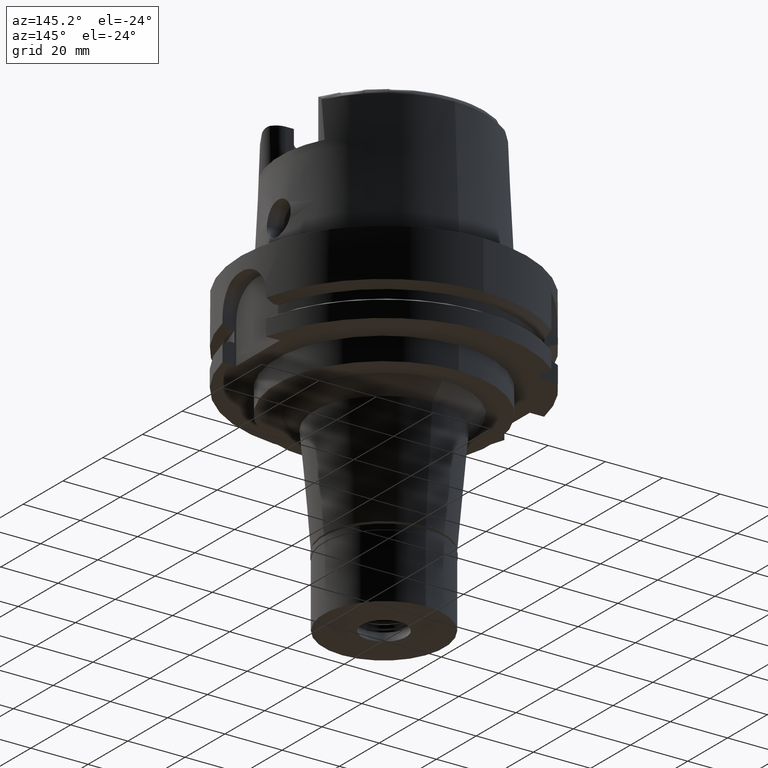
[diagram: clean part render]
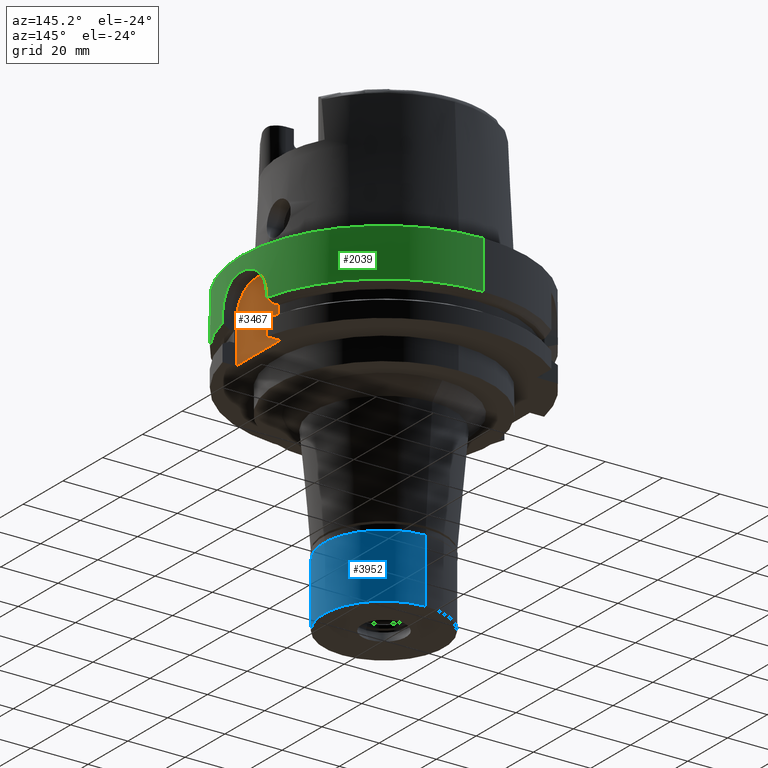
[diagram: same view with three faces highlighted in distinct colors, each labeled with its STEP entity id]
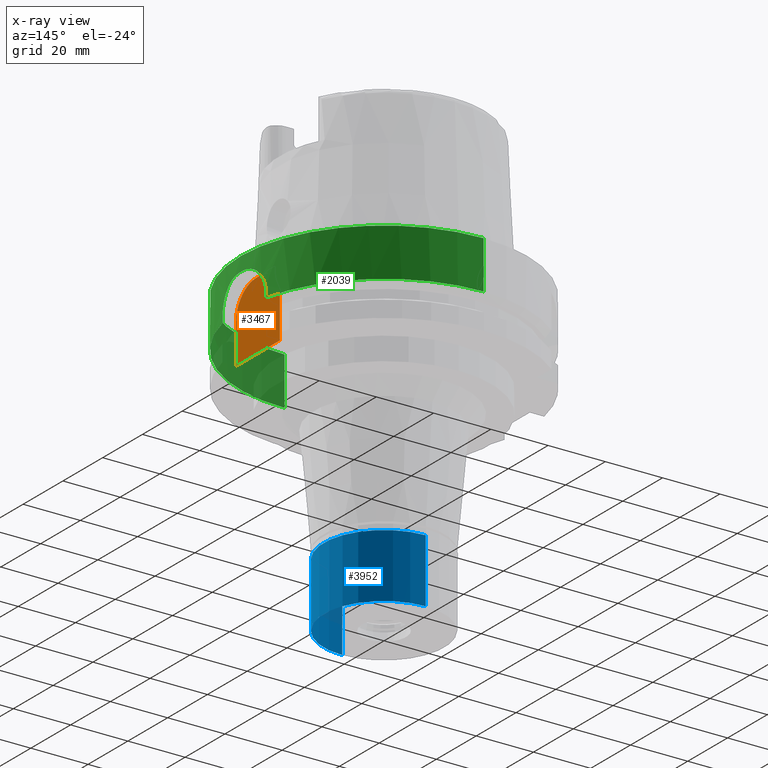
[diagram: x-ray of the same camera — body ghosted, the three highlighted faces saturated]
A machine part, auxiliary view with three faces highlighted in distinct colors.
The next image is the same camera in x-ray (body ghosted, the three faces saturated) — at least one of them is partly hidden behind the body in this view.
Their STEP definitions:

[orange] entity #3467 — the highlighted planar face has unit normal (1, 0, 0).
#113 = CARTESIAN_POINT ( 'NONE',  ( 44.00000000000000000, -11.00000000000000000, -29.00000000000000000 ) ) ;
#135 = AXIS2_PLACEMENT_3D ( 'NONE', #2072, #2834, #5058 ) ;
#257 = PLANE ( 'NONE',  #135 ) ;
#759 = CARTESIAN_POINT ( 'NONE',  ( 44.00000000000000000, -1.000000000000000000, -15.00000000000000000 ) ) ;
#1104 = VECTOR ( 'NONE', #4105, 1000.000000000000000 ) ;
#1113 = FACE_OUTER_BOUND ( 'NONE', #3155, .T. ) ;
#1218 = EDGE_CURVE ( 'NONE', #3682, #2916, #5426, .T. ) ;
#1241 = LINE ( 'NONE', #3059, #5263 ) ;
#1399 = AXIS2_PLACEMENT_3D ( 'NONE', #5265, #3063, #1818 ) ;
#1529 = EDGE_CURVE ( 'NONE', #2916, #1925, #1241, .T. ) ;
#1580 = LINE ( 'NONE', #2419, #2951 ) ;
#1730 = ORIENTED_EDGE ( 'NONE', *, *, #1218, .F. ) ;
#1818 = DIRECTION ( 'NONE',  ( 0.0000000000000000000, 2.086004979862110531E-14, 1.000000000000000000 ) ) ;
#1819 = ORIENTED_EDGE ( 'NONE', *, *, #1529, .F. ) ;
#1823 = DIRECTION ( 'NONE',  ( 0.0000000000000000000, 0.0000000000000000000, 1.000000000000000000 ) ) ;
#1925 = VERTEX_POINT ( 'NONE', #5032 ) ;
#1935 = VERTEX_POINT ( 'NONE', #2864 ) ;
#2072 = CARTESIAN_POINT ( 'NONE',  ( 44.00000000000000000, 0.0000000000000000000, 0.0000000000000000000 ) ) ;
#2383 = CARTESIAN_POINT ( 'NONE',  ( 44.00000000000000000, 11.00000000000000000, -29.00000000000000000 ) ) ;
#2419 = CARTESIAN_POINT ( 'NONE',  ( 44.00000000000000000, 11.00000000000000000, -15.00000000000000000 ) ) ;
#2474 = DIRECTION ( 'NONE',  ( 0.0000000000000000000, -1.000000000000000000, 0.0000000000000000000 ) ) ;
#2494 = VERTEX_POINT ( 'NONE', #3040 ) ;
#2543 = EDGE_CURVE ( 'NONE', #1935, #3682, #5269, .T. ) ;
#2703 = AXIS2_PLACEMENT_3D ( 'NONE', #759, #4719, #2474 ) ;
#2705 = EDGE_CURVE ( 'NONE', #4057, #2494, #1580, .T. ) ;
#2739 = ORIENTED_EDGE ( 'NONE', *, *, #2543, .F. ) ;
#2834 = DIRECTION ( 'NONE',  ( 1.000000000000000000, 0.0000000000000000000, 0.0000000000000000000 ) ) ;
#2864 = CARTESIAN_POINT ( 'NONE',  ( 44.00000000000000000, -11.00000000000000000, -29.00000000000000000 ) ) ;
#2916 = VERTEX_POINT ( 'NONE', #3949 ) ;
#2951 = VECTOR ( 'NONE', #5547, 1000.000000000000000 ) ;
#3040 = CARTESIAN_POINT ( 'NONE',  ( 44.00000000000000000, 11.00000000000000000, -29.00000000000000000 ) ) ;
#3059 = CARTESIAN_POINT ( 'NONE',  ( 44.00000000000000000, -1.000000000000000000, -5.000000000000000000 ) ) ;
#3063 = DIRECTION ( 'NONE',  ( -1.000000000000000000, 0.0000000000000000000, 0.0000000000000000000 ) ) ;
#3155 = EDGE_LOOP ( 'NONE', ( #5295, #4644, #1819, #1730, #2739, #5103 ) ) ;
#3276 = CIRCLE ( 'NONE', #1399, 10.00000000000000000 ) ;
#3394 = CARTESIAN_POINT ( 'NONE',  ( 44.00000000000000000, 11.00000000000000000, -15.00000000000000000 ) ) ;
#3467 = ADVANCED_FACE ( 'NONE', ( #1113 ), #257, .T. ) ;
#3568 = CARTESIAN_POINT ( 'NONE',  ( 44.00000000000000000, -11.00000000000000000, -15.00000000000000000 ) ) ;
#3581 = EDGE_CURVE ( 'NONE', #2494, #1935, #4532, .T. ) ;
#3682 = VERTEX_POINT ( 'NONE', #3568 ) ;
#3949 = CARTESIAN_POINT ( 'NONE',  ( 44.00000000000000000, -1.000000000000000000, -5.000000000000000000 ) ) ;
#4057 = VERTEX_POINT ( 'NONE', #3394 ) ;
#4105 = DIRECTION ( 'NONE',  ( 0.0000000000000000000, -1.000000000000000000, 0.0000000000000000000 ) ) ;
#4344 = EDGE_CURVE ( 'NONE', #1925, #4057, #3276, .T. ) ;
#4532 = LINE ( 'NONE', #2383, #1104 ) ;
#4644 = ORIENTED_EDGE ( 'NONE', *, *, #4344, .F. ) ;
#4719 = DIRECTION ( 'NONE',  ( -1.000000000000000000, 0.0000000000000000000, 0.0000000000000000000 ) ) ;
#5032 = CARTESIAN_POINT ( 'NONE',  ( 44.00000000000000000, 1.000000000000000000, -5.000000000000000000 ) ) ;
#5058 = DIRECTION ( 'NONE',  ( 0.0000000000000000000, 1.000000000000000000, 0.0000000000000000000 ) ) ;
#5103 = ORIENTED_EDGE ( 'NONE', *, *, #3581, .F. ) ;
#5263 = VECTOR ( 'NONE', #5586, 1000.000000000000000 ) ;
#5265 = CARTESIAN_POINT ( 'NONE',  ( 44.00000000000000000, 1.000000000000000000, -15.00000000000000000 ) ) ;
#5269 = LINE ( 'NONE', #113, #5579 ) ;
#5295 = ORIENTED_EDGE ( 'NONE', *, *, #2705, .F. ) ;
#5426 = CIRCLE ( 'NONE', #2703, 9.999999999999998224 ) ;
#5547 = DIRECTION ( 'NONE',  ( 0.0000000000000000000, 0.0000000000000000000, -1.000000000000000000 ) ) ;
#5579 = VECTOR ( 'NONE', #1823, 1000.000000000000000 ) ;
#5586 = DIRECTION ( 'NONE',  ( 0.0000000000000000000, 1.000000000000000000, 0.0000000000000000000 ) ) ;

[blue] entity #3952 — the highlighted cylindrical surface (partial cylindrical patch) has radius 21 mm, axis along (0, 0, -1).
#128 = CARTESIAN_POINT ( 'NONE',  ( 0.0000000000000000000, 0.0000000000000000000, -24.29999999999999716 ) ) ;
#190 = VERTEX_POINT ( 'NONE', #3403 ) ;
#238 = EDGE_LOOP ( 'NONE', ( #4114, #386, #4657, #3513 ) ) ;
#386 = ORIENTED_EDGE ( 'NONE', *, *, #830, .T. ) ;
#445 = LINE ( 'NONE', #1731, #5034 ) ;
#559 = VERTEX_POINT ( 'NONE', #3365 ) ;
#777 = CARTESIAN_POINT ( 'NONE',  ( 0.0000000000000000000, 0.0000000000000000000, 0.0000000000000000000 ) ) ;
#782 = CARTESIAN_POINT ( 'NONE',  ( 0.0000000000000000000, 21.00000000000000000, -24.29999999999999716 ) ) ;
#808 = VERTEX_POINT ( 'NONE', #3144 ) ;
#830 = EDGE_CURVE ( 'NONE', #808, #559, #4878, .T. ) ;
#890 = CYLINDRICAL_SURFACE ( 'NONE', #1297, 21.00000000000000000 ) ;
#1003 = CARTESIAN_POINT ( 'NONE',  ( 0.0000000000000000000, -21.00000000000000000, -2.000000000000000000 ) ) ;
#1297 = AXIS2_PLACEMENT_3D ( 'NONE', #777, #2603, #4276 ) ;
#1314 = DIRECTION ( 'NONE',  ( 0.0000000000000000000, 0.0000000000000000000, -1.000000000000000000 ) ) ;
#1342 = FACE_OUTER_BOUND ( 'NONE', #238, .T. ) ;
#1731 = CARTESIAN_POINT ( 'NONE',  ( 0.0000000000000000000, 21.00000000000000000, -2.000000000000000000 ) ) ;
#1836 = DIRECTION ( 'NONE',  ( 0.0000000000000000000, -1.000000000000000000, 0.0000000000000000000 ) ) ;
#1842 = DIRECTION ( 'NONE',  ( 0.0000000000000000000, 0.0000000000000000000, -1.000000000000000000 ) ) ;
#2250 = VECTOR ( 'NONE', #2719, 1000.000000000000000 ) ;
#2476 = VERTEX_POINT ( 'NONE', #782 ) ;
#2603 = DIRECTION ( 'NONE',  ( 0.0000000000000000000, 0.0000000000000000000, -1.000000000000000000 ) ) ;
#2639 = EDGE_CURVE ( 'NONE', #190, #2476, #445, .T. ) ;
#2655 = DIRECTION ( 'NONE',  ( 0.0000000000000000000, 0.0000000000000000000, 1.000000000000000000 ) ) ;
#2719 = DIRECTION ( 'NONE',  ( 0.0000000000000000000, 0.0000000000000000000, -1.000000000000000000 ) ) ;
#3144 = CARTESIAN_POINT ( 'NONE',  ( 0.0000000000000000000, -21.00000000000000000, -2.000000000000000000 ) ) ;
#3166 = CARTESIAN_POINT ( 'NONE',  ( 0.0000000000000000000, 0.0000000000000000000, -2.000000000000000000 ) ) ;
#3365 = CARTESIAN_POINT ( 'NONE',  ( 0.0000000000000000000, -21.00000000000000000, -24.29999999999999716 ) ) ;
#3372 = CIRCLE ( 'NONE', #3555, 21.00000000000000000 ) ;
#3403 = CARTESIAN_POINT ( 'NONE',  ( 0.0000000000000000000, 21.00000000000000000, -2.000000000000000000 ) ) ;
#3513 = ORIENTED_EDGE ( 'NONE', *, *, #2639, .F. ) ;
#3555 = AXIS2_PLACEMENT_3D ( 'NONE', #3166, #1842, #4393 ) ;
#3952 = ADVANCED_FACE ( 'NONE', ( #1342 ), #890, .T. ) ;
#4114 = ORIENTED_EDGE ( 'NONE', *, *, #4231, .T. ) ;
#4169 = AXIS2_PLACEMENT_3D ( 'NONE', #128, #2655, #1836 ) ;
#4231 = EDGE_CURVE ( 'NONE', #190, #808, #3372, .T. ) ;
#4276 = DIRECTION ( 'NONE',  ( 0.0000000000000000000, -1.000000000000000000, 0.0000000000000000000 ) ) ;
#4393 = DIRECTION ( 'NONE',  ( 0.0000000000000000000, 1.000000000000000000, 0.0000000000000000000 ) ) ;
#4657 = ORIENTED_EDGE ( 'NONE', *, *, #4944, .T. ) ;
#4878 = LINE ( 'NONE', #1003, #2250 ) ;
#4944 = EDGE_CURVE ( 'NONE', #559, #2476, #5198, .T. ) ;
#5034 = VECTOR ( 'NONE', #1314, 1000.000000000000000 ) ;
#5198 = CIRCLE ( 'NONE', #4169, 21.00000000000000000 ) ;

[green] entity #2039 — the highlighted cylindrical surface (partial cylindrical patch) has radius 50 mm, axis along (0, 0, 1).
#106 = B_SPLINE_CURVE_WITH_KNOTS ( 'NONE', 3,
 ( #3323, #3294, #3350, #3747, #5417, #1523, #2446, #318, #1175, #5493, #5098, #1206, #5071, #4517, #3244, #348, #652, #2364, #4171, #5010, #2031, #240, #5039, #4090, #4145, #2900, #1124, #1609, #2872, #4986, #1095, #1150, #4610, #4636, #765, #737, #1948, #1549, #2815, #2479, #4206, #2056, #4548, #679, #2392, #3668, #3776, #3690, #5517, #5440, #1634, #3721, #287, #4117, #263, #3266, #1999, #1974 ),
 .UNSPECIFIED., .F., .F.,
 ( 4, 2, 2, 2, 1, 1, 1, 2, 2, 2, 2, 1, 1, 1, 1, 1, 2, 2, 2, 2, 2, 1, 1, 2, 2, 2, 2, 2, 1, 1, 1, 1, 2, 2, 2, 4 ),
 ( 0.0000000000000000000, 0.1249999999999804601, 0.1874999999999707179, 0.2187499999999658884, 0.2343749999999635292, 0.2421874999999623079, 0.2460937499999617528, 0.2480468749999615308, 0.2499999999999613087, 0.3124999999999529821, 0.3437499999999488742, 0.3593749999999467648, 0.3671874999999456546, 0.3710937499999451550, 0.3730468749999448774, 0.3740234374999446554, 0.3745117187499444888, 0.3749999999999443778, 0.4374999999999440448, 0.4687499999999438782, 0.4843749999999436562, 0.4921874999999434896, 0.4960937499999434896, 0.4980468749999436007, 0.4999999999999437117, 0.6249999999999535927, 0.6874999999999586997, 0.7187499999999614753, 0.7343749999999630296, 0.7421874999999641398, 0.7460937499999645839, 0.7480468749999648059, 0.7490234374999648059, 0.7499999999999649170, 0.8749999999999824585, 1.000000000000000000 ),
 .UNSPECIFIED. ) ;
#220 = ORIENTED_EDGE ( 'NONE', *, *, #455, .F. ) ;
#224 = CARTESIAN_POINT ( 'NONE',  ( 48.97535766410932467, 10.07223683324775543, -10.76705925258577423 ) ) ;
#240 = CARTESIAN_POINT ( 'NONE',  ( 49.57910125289872383, -6.474103168377980388, -6.631302904583868063 ) ) ;
#255 = CARTESIAN_POINT ( 'NONE',  ( 48.78856871940940465, 10.94350089205824084, -13.75586816049127847 ) ) ;
#263 = CARTESIAN_POINT ( 'NONE',  ( 48.84396649235998211, -10.69447674455928166, -12.46123058792636584 ) ) ;
#274 = CARTESIAN_POINT ( 'NONE',  ( 0.0000000000000000000, -50.00000000000000000, 0.0000000000000000000 ) ) ;
#282 = DIRECTION ( 'NONE',  ( 0.0000000000000000000, 0.0000000000000000000, 1.000000000000000000 ) ) ;
#287 = CARTESIAN_POINT ( 'NONE',  ( 48.94095963204276245, -10.23697223784103549, -11.16876350944153806 ) ) ;
#318 = CARTESIAN_POINT ( 'NONE',  ( 49.80552030264608021, -4.403557122029015503, -5.596646531711766848 ) ) ;
#332 = CARTESIAN_POINT ( 'NONE',  ( 49.87787870891595077, 3.539757397140060657, -5.305620818254683790 ) ) ;
#348 = CARTESIAN_POINT ( 'NONE',  ( 49.71298217721858492, -5.356712879119402970, -5.992958834336740814 ) ) ;
#374 = B_SPLINE_CURVE_WITH_KNOTS ( 'NONE', 3,
 ( #2433, #4102, #255, #3678, #4506, #4913, #639, #1964, #5428, #2347, #1030, #2748, #4076, #4995, #3255, #224, #3652, #3846, #3734, #5591, #1647, #5562, #3335, #5113, #2917, #1221, #4622, #2069, #4741, #3817, #4680, #811, #750, #5084, #5504, #419, #4280, #2547, #867, #3428, #3367, #1675, #5479, #2524, #1278, #2953, #2017, #1704, #1595, #4222, #2581, #393, #5528, #2124, #332, #3760, #1164, #4313 ),
 .UNSPECIFIED., .F., .F.,
 ( 4, 2, 2, 2, 1, 1, 1, 1, 2, 2, 2, 2, 2, 1, 1, 1, 2, 2, 2, 2, 2, 1, 1, 1, 1, 2, 2, 2, 2, 1, 1, 1, 2, 2, 2, 4 ),
 ( 0.0000000000000000000, 0.1249999999999865108, 0.1874999999999797662, 0.2187499999999762690, 0.2343749999999743816, 0.2421874999999733824, 0.2460937499999728550, 0.2480468749999727440, 0.2490234374999728828, 0.2499999999999730216, 0.3749999999999735767, 0.4374999999999736322, 0.4687499999999736322, 0.4843749999999735767, 0.4921874999999735212, 0.4960937499999736322, 0.4980468749999737432, 0.4999999999999737987, 0.5624999999999780176, 0.5937499999999801270, 0.6093749999999814593, 0.6171874999999822364, 0.6210937499999826805, 0.6230468749999831246, 0.6240234374999834577, 0.6245117187499835687, 0.6249999999999835687, 0.6874999999999824585, 0.7187499999999816813, 0.7343749999999813483, 0.7421874999999811262, 0.7460937499999809042, 0.7480468749999809042, 0.7499999999999809042, 0.8749999999999904521, 1.000000000000000000 ),
 .UNSPECIFIED. ) ;
#393 = CARTESIAN_POINT ( 'NONE',  ( 49.76349579823033054, 4.856365171614492660, -5.773487548385934254 ) ) ;
#419 = CARTESIAN_POINT ( 'NONE',  ( 49.55669911947530437, 6.643283120092612570, -6.744437225285618176 ) ) ;
#435 = CARTESIAN_POINT ( 'NONE',  ( 0.0000000000000000000, -50.00000000000000000, -16.75240473580999989 ) ) ;
#455 = EDGE_CURVE ( 'NONE', #1434, #2714, #1486, .T. ) ;
#556 = VERTEX_POINT ( 'NONE', #5527 ) ;
#617 = ORIENTED_EDGE ( 'NONE', *, *, #2692, .F. ) ;
#639 = CARTESIAN_POINT ( 'NONE',  ( 48.88783683105882716, 10.48924385610279408, -11.84044260317996589 ) ) ;
#652 = CARTESIAN_POINT ( 'NONE',  ( 49.66344525138951127, -5.792665266264424240, -6.221771587427112671 ) ) ;
#679 = CARTESIAN_POINT ( 'NONE',  ( 48.99493017235491266, -9.978859308319863786, -10.59546486608786608 ) ) ;
#683 = CARTESIAN_POINT ( 'NONE',  ( 0.0000000000000000000, -50.00000000000000000, 0.0000000000000000000 ) ) ;
#688 = AXIS2_PLACEMENT_3D ( 'NONE', #2327, #282, #3657 ) ;
#737 = CARTESIAN_POINT ( 'NONE',  ( 49.35788917842446466, -7.987433540226526851, -7.846171203761096891 ) ) ;
#750 = CARTESIAN_POINT ( 'NONE',  ( 49.53735782244981323, 6.785232037106866620, -6.843103860538170657 ) ) ;
#765 = CARTESIAN_POINT ( 'NONE',  ( 49.36957320851249875, -7.914895041865486647, -7.775736493209305600 ) ) ;
#811 = CARTESIAN_POINT ( 'NONE',  ( 49.51631436296546696, 6.936674894796932556, -6.951935101775849724 ) ) ;
#867 = CARTESIAN_POINT ( 'NONE',  ( 49.56434386239168788, 6.586108820001921771, -6.705700703325963907 ) ) ;
#895 = CARTESIAN_POINT ( 'NONE',  ( 48.77499359303000404, -11.00000000000000000, -15.00000000000000000 ) ) ;
#951 = CARTESIAN_POINT ( 'NONE',  ( 48.77499359303000404, 11.00000000000000000, -16.75240473580999989 ) ) ;
#970 = DIRECTION ( 'NONE',  ( 0.9754998718605770724, 0.2199999999999950051, 0.0000000000000000000 ) ) ;
#1030 = CARTESIAN_POINT ( 'NONE',  ( 48.93200239114963068, 10.27978136997571745, -11.27354633406084439 ) ) ;
#1095 = CARTESIAN_POINT ( 'NONE',  ( 49.44506135300879635, -7.428096049722338279, -7.337103565203992872 ) ) ;
#1124 = CARTESIAN_POINT ( 'NONE',  ( 49.57054960021022794, -6.539210718304240721, -6.674308041423772764 ) ) ;
#1150 = CARTESIAN_POINT ( 'NONE',  ( 49.41038362764622605, -7.655144006541869217, -7.535473330417651994 ) ) ;
#1152 = DIRECTION ( 'NONE',  ( 0.0000000000000000000, 0.0000000000000000000, 1.000000000000000000 ) ) ;
#1164 = CARTESIAN_POINT ( 'NONE',  ( 49.97771331982733756, 1.614161129665430794, -4.999999999999997335 ) ) ;
#1175 = CARTESIAN_POINT ( 'NONE',  ( 49.79483280923344068, -4.523996842736059065, -5.640814381893888729 ) ) ;
#1191 = CIRCLE ( 'NONE', #4360, 49.99999999999999289 ) ;
#1206 = CARTESIAN_POINT ( 'NONE',  ( 49.77238024433998476, -4.764346376694809315, -5.735561916073943500 ) ) ;
#1221 = CARTESIAN_POINT ( 'NONE',  ( 49.33452573162430355, 8.130533129438310525, -7.988889735854574070 ) ) ;
#1278 = CARTESIAN_POINT ( 'NONE',  ( 49.69249616097530264, 5.537795456187205367, -6.087337198648210546 ) ) ;
#1434 = VERTEX_POINT ( 'NONE', #895 ) ;
#1445 = VECTOR ( 'NONE', #3651, 1000.000000000000000 ) ;
#1476 = LINE ( 'NONE', #683, #4546 ) ;
#1486 = LINE ( 'NONE', #1852, #1445 ) ;
#1523 = CARTESIAN_POINT ( 'NONE',  ( 49.83940666733481351, -4.001585833402556247, -5.459631212808153222 ) ) ;
#1549 = CARTESIAN_POINT ( 'NONE',  ( 49.34939682292251462, -8.039744192207407991, -7.897731434262460937 ) ) ;
#1563 = CIRCLE ( 'NONE', #4275, 50.00000000000000000 ) ;
#1595 = CARTESIAN_POINT ( 'NONE',  ( 49.75346911493551261, 4.958375812332663557, -5.816663284747194851 ) ) ;
#1609 = CARTESIAN_POINT ( 'NONE',  ( 49.55065344604120980, -6.689975285005471228, -6.774644560137008220 ) ) ;
#1634 = CARTESIAN_POINT ( 'NONE',  ( 48.94170527918867464, -10.23339947350024204, -11.16016306004778080 ) ) ;
#1647 = CARTESIAN_POINT ( 'NONE',  ( 49.24842998339724431, 8.641341140343200777, -8.546392656628501783 ) ) ;
#1651 = CARTESIAN_POINT ( 'NONE',  ( 0.0000000000000000000, 50.00000000000000000, 0.0000000000000000000 ) ) ;
#1675 = CARTESIAN_POINT ( 'NONE',  ( 49.56505634310792630, 6.580748275193105457, -6.702093223135380917 ) ) ;
#1704 = CARTESIAN_POINT ( 'NONE',  ( 49.74141325126839064, 5.078574913693974402, -5.869000368213430185 ) ) ;
#1764 = LINE ( 'NONE', #951, #3131 ) ;
#1852 = CARTESIAN_POINT ( 'NONE',  ( 48.77499359303000404, -11.00000000000000000, -15.00000000000000000 ) ) ;
#1903 = CARTESIAN_POINT ( 'NONE',  ( 0.0000000000000000000, 50.00000000000000000, 0.0000000000000000000 ) ) ;
#1948 = CARTESIAN_POINT ( 'NONE',  ( 49.35280411475090290, -8.018785634420590114, -7.877018511210867935 ) ) ;
#1964 = CARTESIAN_POINT ( 'NONE',  ( 48.90565418443181755, 10.40512180940917197, -11.60135001415676648 ) ) ;
#1971 = DIRECTION ( 'NONE',  ( 0.0000000000000000000, 0.0000000000000000000, -1.000000000000000000 ) ) ;
#1974 = CARTESIAN_POINT ( 'NONE',  ( 48.77499359303000404, -11.00000000000000000, -15.00000000000000000 ) ) ;
#1999 = CARTESIAN_POINT ( 'NONE',  ( 48.77499359302999693, -11.00000000000000000, -14.38252451699780110 ) ) ;
#2017 = CARTESIAN_POINT ( 'NONE',  ( 49.73058307366731157, 5.183189563159593227, -5.916664954982288727 ) ) ;
#2020 = CARTESIAN_POINT ( 'NONE',  ( 49.98999899980000095, -1.000000000000000000, -5.000000000000000000 ) ) ;
#2031 = CARTESIAN_POINT ( 'NONE',  ( 49.58771154247437352, -6.407942656988582897, -6.588240302288233430 ) ) ;
#2039 = ADVANCED_FACE ( 'NONE', ( #4483 ), #2353, .T. ) ;
#2056 = CARTESIAN_POINT ( 'NONE',  ( 49.06436380632172245, -9.638589619108316242, -9.951961756358464584 ) ) ;
#2069 = CARTESIAN_POINT ( 'NONE',  ( 49.33879583512375433, 8.104559099541864597, -7.962566410197770672 ) ) ;
#2124 = CARTESIAN_POINT ( 'NONE',  ( 49.82780648634726361, 4.193671047376882122, -5.497915270997989268 ) ) ;
#2225 = VECTOR ( 'NONE', #4942, 1000.000000000000000 ) ;
#2234 = CARTESIAN_POINT ( 'NONE',  ( 0.0000000000000000000, 0.0000000000000000000, -16.75240473580999989 ) ) ;
#2279 = DIRECTION ( 'NONE',  ( 0.0000000000000000000, 0.0000000000000000000, 1.000000000000000000 ) ) ;
#2327 = CARTESIAN_POINT ( 'NONE',  ( 0.0000000000000000000, 0.0000000000000000000, -104.8750000000000000 ) ) ;
#2347 = CARTESIAN_POINT ( 'NONE',  ( 48.92620247143186418, 10.30747906135812819, -11.34294919380685407 ) ) ;
#2349 = EDGE_CURVE ( 'NONE', #5521, #3666, #4593, .T. ) ;
#2353 = CYLINDRICAL_SURFACE ( 'NONE', #688, 50.00000000000000000 ) ;
#2364 = CARTESIAN_POINT ( 'NONE',  ( 49.64605891428948325, -5.940096840366900111, -6.303712651734824313 ) ) ;
#2376 = VERTEX_POINT ( 'NONE', #274 ) ;
#2392 = CARTESIAN_POINT ( 'NONE',  ( 48.98273454702786722, -10.03737470878122728, -10.71718027101402804 ) ) ;
#2403 = EDGE_CURVE ( 'NONE', #3022, #3902, #374, .T. ) ;
#2422 = DIRECTION ( 'NONE',  ( 0.0000000000000000000, 2.969006079282000197E-14, -1.000000000000000000 ) ) ;
#2433 = CARTESIAN_POINT ( 'NONE',  ( 48.77499359303000404, 11.00000000000000000, -15.00000000000000000 ) ) ;
#2446 = CARTESIAN_POINT ( 'NONE',  ( 49.82631575168694837, -4.162508817292890129, -5.511714163745081940 ) ) ;
#2479 = CARTESIAN_POINT ( 'NONE',  ( 49.24832711335683655, -8.658537959991663868, -8.514682990585082933 ) ) ;
#2483 = CARTESIAN_POINT ( 'NONE',  ( 0.0000000000000000000, 0.0000000000000000000, -5.000000000000000000 ) ) ;
#2504 = DIRECTION ( 'NONE',  ( 0.0000000000000000000, 1.000000000000000000, 0.0000000000000000000 ) ) ;
#2524 = CARTESIAN_POINT ( 'NONE',  ( 49.64255438160950717, 5.974516173792913776, -6.318826571952068427 ) ) ;
#2536 = CARTESIAN_POINT ( 'NONE',  ( 48.77499359303000404, -11.00000000000000000, -16.75240473580999989 ) ) ;
#2547 = CARTESIAN_POINT ( 'NONE',  ( 49.56330000856512186, 6.593952720552819891, -6.710986512160826756 ) ) ;
#2581 = CARTESIAN_POINT ( 'NONE',  ( 49.76184250146052079, 4.873306991616070505, -5.780586932709396386 ) ) ;
#2585 = EDGE_CURVE ( 'NONE', #556, #3022, #1764, .T. ) ;
#2692 = EDGE_CURVE ( 'NONE', #3542, #1434, #106, .T. ) ;
#2714 = VERTEX_POINT ( 'NONE', #2536 ) ;
#2748 = CARTESIAN_POINT ( 'NONE',  ( 48.93493715052682802, 10.26574853364857809, -11.23886929028502202 ) ) ;
#2815 = CARTESIAN_POINT ( 'NONE',  ( 49.34748922801981763, -8.051447867949374171, -7.909354265960667263 ) ) ;
#2847 = CARTESIAN_POINT ( 'NONE',  ( 0.0000000000000000000, 0.0000000000000000000, -16.75240473580999989 ) ) ;
#2872 = CARTESIAN_POINT ( 'NONE',  ( 49.52207984338065216, -6.899204910139792091, -6.918731646181256245 ) ) ;
#2900 = CARTESIAN_POINT ( 'NONE',  ( 49.57102041627646827, -6.535641699999772847, -6.671934254911910500 ) ) ;
#2917 = CARTESIAN_POINT ( 'NONE',  ( 49.33002280012107832, 8.157879827863110833, -8.016738702959985474 ) ) ;
#2953 = CARTESIAN_POINT ( 'NONE',  ( 49.70826061156902398, 5.394380857630308945, -6.015924158624373241 ) ) ;
#3022 = VERTEX_POINT ( 'NONE', #3268 ) ;
#3057 = EDGE_CURVE ( 'NONE', #4690, #2714, #5491, .T. ) ;
#3068 = DIRECTION ( 'NONE',  ( 4.946700496258999748E-13, 7.095676941355000738E-14, 1.000000000000000000 ) ) ;
#3131 = VECTOR ( 'NONE', #3068, 1000.000000000000000 ) ;
#3244 = CARTESIAN_POINT ( 'NONE',  ( 49.74251068047661306, -5.074598518069243447, -5.863094529357333329 ) ) ;
#3252 = CARTESIAN_POINT ( 'NONE',  ( 49.98999899980000095, 1.000000000000000000, -5.000000000000000000 ) ) ;
#3255 = CARTESIAN_POINT ( 'NONE',  ( 48.93760243337564475, 10.25299410768680453, -11.20762427094270741 ) ) ;
#3266 = CARTESIAN_POINT ( 'NONE',  ( 48.78878817289599112, -10.94265506448249603, -13.74626966727209165 ) ) ;
#3268 = CARTESIAN_POINT ( 'NONE',  ( 48.77499359303000404, 11.00000000000000000, -15.00000000000000000 ) ) ;
#3294 = CARTESIAN_POINT ( 'NONE',  ( 49.97781662360149824, -1.608996973829352806, -5.000000000000000888 ) ) ;
#3323 = CARTESIAN_POINT ( 'NONE',  ( 49.98999899980000095, -1.000000000000000000, -5.000000000000000000 ) ) ;
#3327 = ORIENTED_EDGE ( 'NONE', *, *, #2585, .F. ) ;
#3335 = CARTESIAN_POINT ( 'NONE',  ( 49.29903428291373046, 8.344381248230519077, -8.211903044522813389 ) ) ;
#3350 = CARTESIAN_POINT ( 'NONE',  ( 49.95327077466669863, -2.239072806467601318, -5.055766699178817269 ) ) ;
#3364 = ORIENTED_EDGE ( 'NONE', *, *, #2349, .F. ) ;
#3367 = CARTESIAN_POINT ( 'NONE',  ( 49.56507970692049980, 6.580571833410794547, -6.701974946653528775 ) ) ;
#3428 = CARTESIAN_POINT ( 'NONE',  ( 49.56478605842758611, 6.582781979833726815, -6.703461737599985426 ) ) ;
#3449 = ORIENTED_EDGE ( 'NONE', *, *, #4904, .T. ) ;
#3509 = ORIENTED_EDGE ( 'NONE', *, *, #2403, .F. ) ;
#3542 = VERTEX_POINT ( 'NONE', #2020 ) ;
#3651 = DIRECTION ( 'NONE',  ( -5.027793947017000297E-13, 6.690209687562999968E-14, -1.000000000000000000 ) ) ;
#3652 = CARTESIAN_POINT ( 'NONE',  ( 49.02764393005618615, 9.827804980299264415, -10.25673978789965979 ) ) ;
#3657 = DIRECTION ( 'NONE',  ( 0.0000000000000000000, 1.000000000000000000, 0.0000000000000000000 ) ) ;
#3666 = VERTEX_POINT ( 'NONE', #3967 ) ;
#3668 = CARTESIAN_POINT ( 'NONE',  ( 48.96585036025920346, -10.11808488979891862, -10.89333474009651503 ) ) ;
#3678 = CARTESIAN_POINT ( 'NONE',  ( 48.82929409854762071, 10.76036978321691429, -12.79989768397538974 ) ) ;
#3690 = CARTESIAN_POINT ( 'NONE',  ( 48.94893904974794907, -10.19878965448054942, -11.07777500448717944 ) ) ;
#3721 = CARTESIAN_POINT ( 'NONE',  ( 48.94111553908341250, -10.23622520131813118, -11.16696496321882748 ) ) ;
#3734 = CARTESIAN_POINT ( 'NONE',  ( 49.16556981264579917, 9.108276592599718668, -9.135282287866766993 ) ) ;
#3747 = CARTESIAN_POINT ( 'NONE',  ( 49.89790679216002900, -3.197380061834142584, -5.238991332650304145 ) ) ;
#3760 = CARTESIAN_POINT ( 'NONE',  ( 49.95283212565599484, 2.250002003649679949, -5.056718331121437870 ) ) ;
#3776 = CARTESIAN_POINT ( 'NONE',  ( 48.95776057968036099, -10.15667365108752307, -10.97980913276287396 ) ) ;
#3808 = AXIS2_PLACEMENT_3D ( 'NONE', #2234, #2279, #970 ) ;
#3817 = CARTESIAN_POINT ( 'NONE',  ( 49.44372835112432085, 7.439290826668041312, -7.342117315279677925 ) ) ;
#3846 = CARTESIAN_POINT ( 'NONE',  ( 49.12830889610705043, 9.307447806160034531, -9.423847607857231523 ) ) ;
#3902 = VERTEX_POINT ( 'NONE', #3252 ) ;
#3967 = CARTESIAN_POINT ( 'NONE',  ( 0.0000000000000000000, 50.00000000000000000, -16.75240473580999989 ) ) ;
#3990 = ORIENTED_EDGE ( 'NONE', *, *, #5145, .T. ) ;
#4076 = CARTESIAN_POINT ( 'NONE',  ( 48.93620236158527348, 10.25969499258143536, -11.22401307592190278 ) ) ;
#4090 = CARTESIAN_POINT ( 'NONE',  ( 49.57258080027360592, -6.523799919594416075, -6.664072278965457841 ) ) ;
#4102 = CARTESIAN_POINT ( 'NONE',  ( 48.77499359303000404, 10.99999999999999822, -14.38708474123101944 ) ) ;
#4117 = CARTESIAN_POINT ( 'NONE',  ( 48.88535023195794338, -10.50355077001837323, -11.81245682830388333 ) ) ;
#4145 = CARTESIAN_POINT ( 'NONE',  ( 49.57164482593834265, -6.530904694657184706, -6.668787522580814198 ) ) ;
#4171 = CARTESIAN_POINT ( 'NONE',  ( 49.61866836590391472, -6.163633810923042411, -6.435866741132385549 ) ) ;
#4206 = CARTESIAN_POINT ( 'NONE',  ( 49.16572258272248774, -9.113683933154941741, -9.117839181100427126 ) ) ;
#4209 = DIRECTION ( 'NONE',  ( 0.9997999799959990108, -0.02000000000000000389, 0.0000000000000000000 ) ) ;
#4221 = EDGE_LOOP ( 'NONE', ( #3509, #3327, #3449, #3364, #3990, #4796, #5211, #220, #617, #4237 ) ) ;
#4222 = CARTESIAN_POINT ( 'NONE',  ( 49.75935221088557370, 4.898754716146740407, -5.791291832267788209 ) ) ;
#4237 = ORIENTED_EDGE ( 'NONE', *, *, #4788, .T. ) ;
#4275 = AXIS2_PLACEMENT_3D ( 'NONE', #4544, #1971, #2504 ) ;
#4280 = CARTESIAN_POINT ( 'NONE',  ( 49.56116404860764391, 6.609965046042639791, -6.721805163241614700 ) ) ;
#4313 = CARTESIAN_POINT ( 'NONE',  ( 49.98999899980000095, 1.000000000000000000, -5.000000000000000000 ) ) ;
#4360 = AXIS2_PLACEMENT_3D ( 'NONE', #2483, #4641, #4209 ) ;
#4452 = EDGE_CURVE ( 'NONE', #2376, #4690, #1476, .T. ) ;
#4483 = FACE_OUTER_BOUND ( 'NONE', #4221, .T. ) ;
#4485 = AXIS2_PLACEMENT_3D ( 'NONE', #2847, #1152, #4581 ) ;
#4506 = CARTESIAN_POINT ( 'NONE',  ( 48.84626300652187325, 10.68295678383457314, -12.47977473912170865 ) ) ;
#4517 = CARTESIAN_POINT ( 'NONE',  ( 49.76935658193882261, -4.795902485085649758, -5.748448361655969840 ) ) ;
#4544 = CARTESIAN_POINT ( 'NONE',  ( 0.0000000000000000000, 0.0000000000000000000, 0.0000000000000000000 ) ) ;
#4546 = VECTOR ( 'NONE', #2422, 1000.000000000000000 ) ;
#4548 = CARTESIAN_POINT ( 'NONE',  ( 49.03433555077994299, -9.787412506275003921, -10.21870746111090966 ) ) ;
#4581 = DIRECTION ( 'NONE',  ( 0.0000000000000000000, -1.000000000000000000, 0.0000000000000000000 ) ) ;
#4593 = LINE ( 'NONE', #1903, #2225 ) ;
#4610 = CARTESIAN_POINT ( 'NONE',  ( 49.39827240571841571, -7.733321253884190227, -7.605783841356310582 ) ) ;
#4622 = CARTESIAN_POINT ( 'NONE',  ( 49.33753492410014019, 8.112234481567082156, -7.970327850800516423 ) ) ;
#4636 = CARTESIAN_POINT ( 'NONE',  ( 49.37927760261622723, -7.853830573166714402, -7.717966053257220516 ) ) ;
#4641 = DIRECTION ( 'NONE',  ( 0.0000000000000000000, 0.0000000000000000000, 1.000000000000000000 ) ) ;
#4680 = CARTESIAN_POINT ( 'NONE',  ( 49.49993251570689523, 7.052456327650286738, -7.037922331908356810 ) ) ;
#4690 = VERTEX_POINT ( 'NONE', #435 ) ;
#4741 = CARTESIAN_POINT ( 'NONE',  ( 49.39684741099335241, 7.750645482490451599, -7.606362732477037092 ) ) ;
#4788 = EDGE_CURVE ( 'NONE', #3542, #3902, #1191, .T. ) ;
#4796 = ORIENTED_EDGE ( 'NONE', *, *, #4452, .T. ) ;
#4825 = CIRCLE ( 'NONE', #3808, 50.00000000000000711 ) ;
#4904 = EDGE_CURVE ( 'NONE', #556, #3666, #4825, .T. ) ;
#4913 = CARTESIAN_POINT ( 'NONE',  ( 48.87680704087554773, 10.54091083322463618, -12.00019711760072205 ) ) ;
#4942 = DIRECTION ( 'NONE',  ( 0.0000000000000000000, -2.969006079282000197E-14, -1.000000000000000000 ) ) ;
#4986 = CARTESIAN_POINT ( 'NONE',  ( 49.46597191602266008, -7.286748451037936114, -7.221589294210894572 ) ) ;
#4995 = CARTESIAN_POINT ( 'NONE',  ( 48.93704749274413501, 10.25565052319496218, -11.21411014437461340 ) ) ;
#5010 = CARTESIAN_POINT ( 'NONE',  ( 49.60464533102728524, -6.275998002309209234, -6.504254167307325751 ) ) ;
#5039 = CARTESIAN_POINT ( 'NONE',  ( 49.57476025928612984, -6.507227292499771387, -6.653103990843025173 ) ) ;
#5071 = CARTESIAN_POINT ( 'NONE',  ( 49.77046618469558581, -4.784350012414932962, -5.743715019611274286 ) ) ;
#5084 = CARTESIAN_POINT ( 'NONE',  ( 49.54378409037736475, 6.738446426559092650, -6.810191622810727097 ) ) ;
#5098 = CARTESIAN_POINT ( 'NONE',  ( 49.77524227852869387, -4.734335165464243822, -5.723386601427407072 ) ) ;
#5113 = CARTESIAN_POINT ( 'NONE',  ( 49.31959196042053151, 8.220982320686408329, -8.081757285673267788 ) ) ;
#5145 = EDGE_CURVE ( 'NONE', #5521, #2376, #1563, .T. ) ;
#5211 = ORIENTED_EDGE ( 'NONE', *, *, #3057, .T. ) ;
#5417 = CARTESIAN_POINT ( 'NONE',  ( 49.87636126314038165, -3.518947616932427636, -5.316636981565764586 ) ) ;
#5428 = CARTESIAN_POINT ( 'NONE',  ( 48.91488102814279415, 10.36140569921908217, -11.48193883698727191 ) ) ;
#5440 = CARTESIAN_POINT ( 'NONE',  ( 48.94259264179034830, -10.22914867411381046, -11.14994672836798628 ) ) ;
#5479 = CARTESIAN_POINT ( 'NONE',  ( 49.60572862525287263, 6.274377875335410693, -6.496171441139655833 ) ) ;
#5491 = CIRCLE ( 'NONE', #4485, 50.00000000000000000 ) ;
#5493 = CARTESIAN_POINT ( 'NONE',  ( 49.78185697135716481, -4.664270192248159752, -5.695357409005611160 ) ) ;
#5504 = CARTESIAN_POINT ( 'NONE',  ( 49.55254116441779644, 6.674042347158996691, -6.765564645706509950 ) ) ;
#5517 = CARTESIAN_POINT ( 'NONE',  ( 48.94468242163415539, -10.21914433933067379, -11.12601447933791654 ) ) ;
#5521 = VERTEX_POINT ( 'NONE', #1651 ) ;
#5527 = CARTESIAN_POINT ( 'NONE',  ( 48.77499359303000404, 11.00000000000000000, -16.75240473580999989 ) ) ;
#5528 = CARTESIAN_POINT ( 'NONE',  ( 49.76415956619290881, 4.849548863590417369, -5.770639623031205367 ) ) ;
#5562 = CARTESIAN_POINT ( 'NONE',  ( 49.28193456258394889, 8.445410431191040956, -8.323500239459930228 ) ) ;
#5591 = CARTESIAN_POINT ( 'NONE',  ( 49.22702007923655998, 8.763788922765657574, -8.694577940453259046 ) ) ;